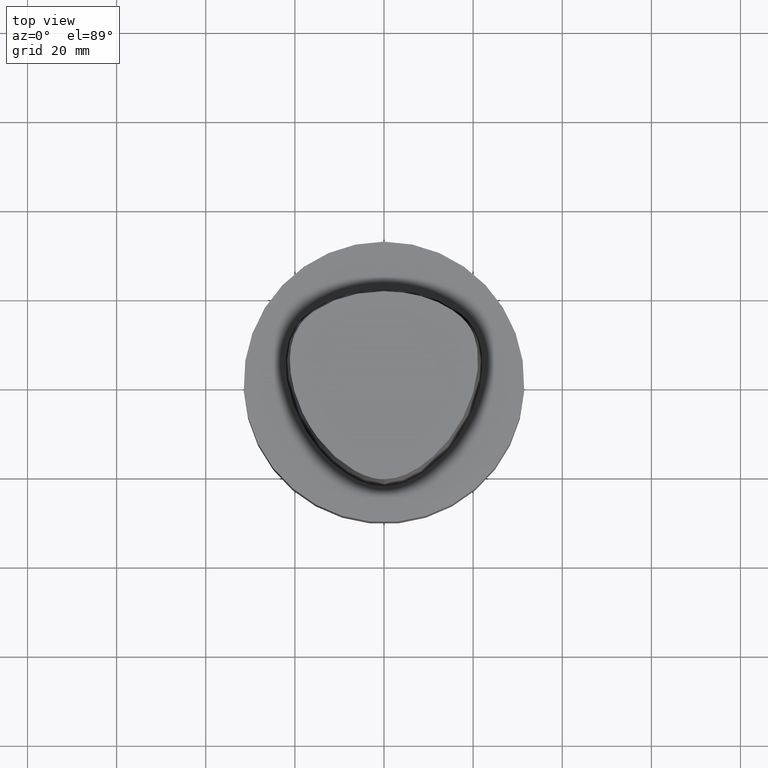
[diagram: clean part render]
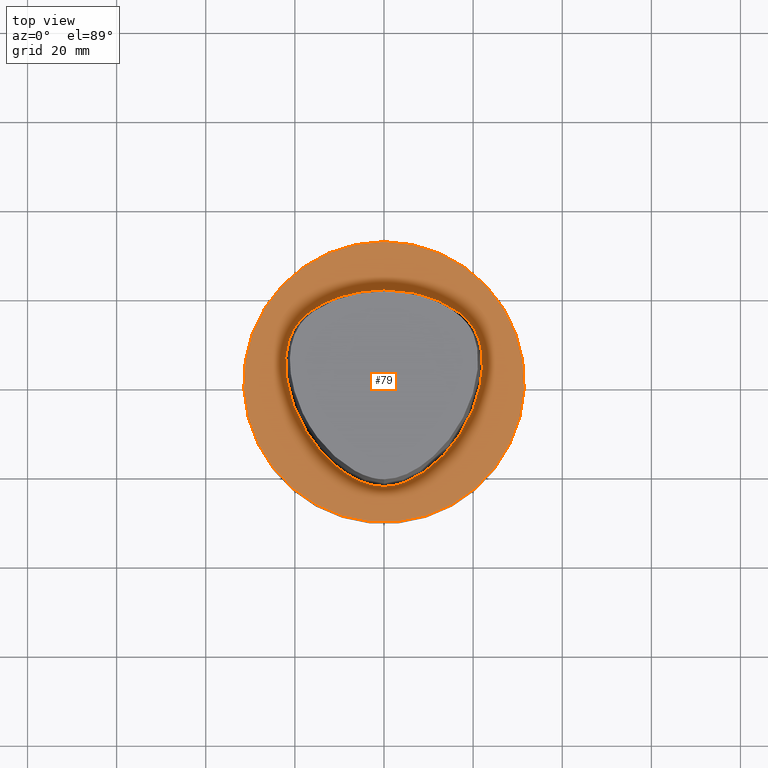
[diagram: same view with one face highlighted and labeled with its STEP entity id]
A machine part, top view. The second image highlights one B-rep face of the part: STEP entity #79.
In plain terms, the highlighted planar face has unit normal (-0, -0, 1).
Its self-contained STEP definition (entity closure, byte-faithful):
#79=ADVANCED_FACE('',(#94,#95),#96,.T.);
#94=FACE_BOUND('',#257,.T.);
#95=FACE_OUTER_BOUND('',#258,.T.);
#96=PLANE('',#259);
#257=EDGE_LOOP('',(#293,#294,#295));
#258=EDGE_LOOP('',(#296));
#259=AXIS2_PLACEMENT_3D('',#297,#298,#299);
#293=ORIENTED_EDGE('',*,*,#324,.T.);
#294=ORIENTED_EDGE('',*,*,#328,.T.);
#295=ORIENTED_EDGE('',*,*,#331,.T.);
#296=ORIENTED_EDGE('',*,*,#332,.T.);
#297=CARTESIAN_POINT('',(-1.94087516075568E-031,15.74625,1.9283594661074E-015));
#298=DIRECTION('',(-6.12323399573677E-017,-1.22464679914735E-016,1.0));
#299=DIRECTION('',(-1.23259516440783E-032,1.0,1.22464679914735E-016));
#324=EDGE_CURVE('',#337,#338,#339,.T.);
#328=EDGE_CURVE('',#338,#345,#346,.T.);
#331=EDGE_CURVE('',#345,#337,#349,.T.);
#332=EDGE_CURVE('',#350,#350,#351,.T.);
#337=VERTEX_POINT('',#360);
#338=VERTEX_POINT('',#361);
#339=B_SPLINE_CURVE_WITH_KNOTS('',3,(#362,#363,#364,#365,#366,#367,#368,#369,#370,#371,#372,#373,#374,#375,#376,#377,#378),.UNSPECIFIED.,.F.,.F.,(4,1,1,1,1,1,1,1,1,1,1,1,1,1,4),(-13.2302678617486,-12.816821991069,-12.4033761203893,-11.9899302497097,-11.57648437903,-11.1630385083504,-10.9563155730106,-10.7495926376707,-10.3361467669911,-9.92270089631145,-9.09580915495216,-8.26891741359287,-7.44202567223358,-7.02857980155394,-6.6151339308743),.UNSPECIFIED.);
#345=VERTEX_POINT('',#401);
#346=B_SPLINE_CURVE_WITH_KNOTS('',3,(#402,#403,#404,#405,#406,#407,#408,#409,#410,#411,#412,#413,#414,#415,#416,#417,#418,#419),.UNSPECIFIED.,.F.,.F.,(4,1,1,1,1,1,1,1,1,2,1,1,1,1,4),(-6.6151339308743,-6.20168806019465,-5.78824218951501,-5.37479631883537,-4.96135044815572,-4.13445870679644,-3.30756696543715,-2.89412109475751,-2.48067522407786,-2.06722935339822,-1.65378348271857,-1.24033761203893,-0.826891741359287,-0.413445870679644,0.0),.UNSPECIFIED.);
#349=CIRCLE('',#438,0.949936168436318);
#350=VERTEX_POINT('',#439);
#351=CIRCLE('',#440,31.4925);
#360=CARTESIAN_POINT('',(0.044682985379347,20.6765087343109,1.61778115328528E-031));
#361=CARTESIAN_POINT('',(0.04359356758149,-23.4691235068931,7.78075697532443E-032));
#362=CARTESIAN_POINT('',(0.044682985379347,20.6765087343109,1.61778115328528E-031));
#363=CARTESIAN_POINT('',(1.42379272427753,20.6097915814392,8.62816615085482E-032));
#364=CARTESIAN_POINT('',(4.2230955003445,20.4837538303966,1.4791141972894E-031));
#365=CARTESIAN_POINT('',(8.47220762821777,19.6890432607088,9.86076131526265E-032));
#366=CARTESIAN_POINT('',(12.5141247708253,18.2434968480404,0.0));
#367=CARTESIAN_POINT('',(16.3038624872874,16.1734192182143,1.97215226305253E-031));
#368=CARTESIAN_POINT('',(19.1446913988473,13.7036723639434,-1.97215226305253E-031));
#369=CARTESIAN_POINT('',(20.7319894342149,11.1014620996188,0.0));
#370=CARTESIAN_POINT('',(21.7831756505763,8.28099229708081,-1.97215226305253E-031));
#371=CARTESIAN_POINT('',(22.2258240701438,4.60865440596506,0.0));
#372=CARTESIAN_POINT('',(21.7436130080666,-1.11326526354485,0.0));
#373=CARTESIAN_POINT('',(19.5519487660502,-7.95432366164584,0.0));
#374=CARTESIAN_POINT('',(14.9574167123838,-15.2089785567293,0.0));
#375=CARTESIAN_POINT('',(9.66840283021945,-20.0827414369705,-9.86076131526265E-032));
#376=CARTESIAN_POINT('',(4.51628650521788,-22.7946374572188,-9.86076131526265E-032));
#377=CARTESIAN_POINT('',(1.55867251738073,-23.4612972770043,-1.23259516440783E-032));
#378=CARTESIAN_POINT('',(0.04359356758149,-23.4691235068931,7.78075697532443E-032));
#401=CARTESIAN_POINT('',(-0.045171994691285,20.6766009553285,1.6755590516169E-031));
#402=CARTESIAN_POINT('',(0.04359356758149,-23.4691235068931,7.78075697532443E-032));
#403=CARTESIAN_POINT('',(-1.4714994713963,-23.4767895315797,2.46519032881566E-032));
#404=CARTESIAN_POINT('',(-4.43923476371401,-22.821149804767,-4.93038065763132E-032));
#405=CARTESIAN_POINT('',(-8.35043230079961,-20.8000751253325,-9.86076131526265E-032));
#406=CARTESIAN_POINT('',(-11.744900222602,-18.1556117874078,-1.97215226305253E-031));
#407=CARTESIAN_POINT('',(-15.6989602501314,-14.0406306929147,-1.97215226305253E-031));
#408=CARTESIAN_POINT('',(-19.5352875070682,-8.00624990770787,1.97215226305253E-031));
#409=CARTESIAN_POINT('',(-21.7205626190491,-1.16081708945282,0.0));
#410=CARTESIAN_POINT('',(-22.2486616783342,4.54965558738736,0.0));
#411=CARTESIAN_POINT('',(-21.6646421256468,9.00229539124618,0.0));
#412=CARTESIAN_POINT('',(-20.3945635471922,11.7780544971003,0.0));
#413=CARTESIAN_POINT('',(-18.5925528034471,14.1980602922581,0.0));
#414=CARTESIAN_POINT('',(-16.3226584122258,16.1777748720707,0.0));
#415=CARTESIAN_POINT('',(-12.5076407874579,18.2524201541303,9.86076131526265E-032));
#416=CARTESIAN_POINT('',(-8.46776192107786,19.679114377952,9.86076131526265E-032));
#417=CARTESIAN_POINT('',(-4.23043497193604,20.487781597334,1.97215226305253E-031));
#418=CARTESIAN_POINT('',(-1.42313094248379,20.6127745766442,1.10933564796705E-031));
#419=CARTESIAN_POINT('',(-0.045171994691285,20.6766009553285,1.6755590516169E-031));
#438=AXIS2_PLACEMENT_3D('',#452,#453,#454);
#439=CARTESIAN_POINT('',(-3.88175032151136E-031,31.4925,3.8567189322148E-015));
#440=AXIS2_PLACEMENT_3D('',#455,#456,#457);
#452=CARTESIAN_POINT('',(-0.001218547003662,19.7276821925089,1.97178046083078E-015));
#453=DIRECTION('',(6.12323399573677E-017,1.22464679914735E-016,-1.0));
#454=DIRECTION('',(-0.046269895968506,0.998928974816059,1.19500303158668E-016));
#455=CARTESIAN_POINT('',(0.0,0.0,0.0));
#456=DIRECTION('',(-6.12323399573677E-017,-1.22464679914735E-016,1.0));
#457=DIRECTION('',(-1.23259516440783E-032,1.0,1.22464679914735E-016));